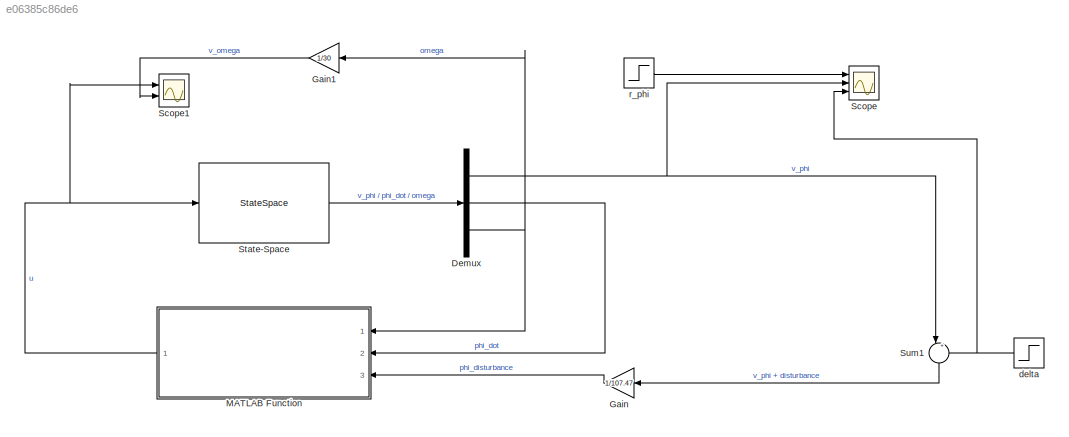
MODEL slx_e06385c86de6
KIND model
CONFIG AbsTol = auto
CONFIG EnableMultiTasking = off
CONFIG FixedStep = auto
CONFIG MaxStep = auto
CONFIG MinStep = auto
CONFIG RelTol = 1e-3
CONFIG SampleTimeConstraint = Unconstrained
CONFIG SolverName = VariableStepAuto
CONFIG StartTime = 0.0
CONFIG StopTime = 3
BLOCK [Demux] Demux
  Outputs = 3
  Ports = [1, 3]
BLOCK [Gain] Gain
  Gain = 1/107.47
  NameLocation = top
BLOCK [Gain] Gain1
  Gain = 1/30
  NameLocation = top
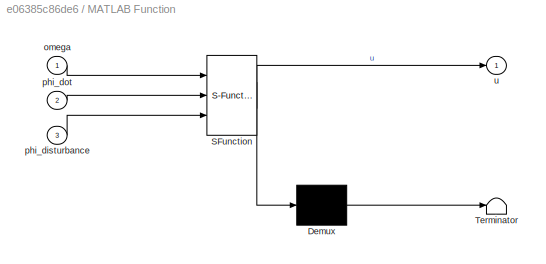
BLOCK [SubSystem] MATLAB Function
  ErrorFcn = Stateflow.Translate.translate
  NameLocation = top
  PermitHierarchicalResolution = ExplicitOnly
  Ports = [3, 1]
  RequestExecContextInheritance = off
  SFBlockType = MATLAB Function
  TreatAsAtomicUnit = on
BLOCK [Demux] MATLAB Function/ Demux 
  Outputs = 1
  Ports = [1, 1]
BLOCK [S-Function] MATLAB Function/ SFunction 
  EnableBusSupport = on
  FunctionName = sf_sfun
  PortCounts = [3 2]
  Ports = [3, 2]
  SFcnIsStateOwnerBlock = off
  SFunctionDeploymentMode = off
  Tag = Stateflow S-Function 2
BLOCK [Terminator] MATLAB Function/ Terminator 
BLOCK [Inport] MATLAB Function/omega
BLOCK [Inport] MATLAB Function/phi_disturbance
  Port = 3
BLOCK [Inport] MATLAB Function/phi_dot
  Port = 2
BLOCK [Outport] MATLAB Function/u
BLOCK [Scope] Scope
  Floating = off
  NumInputPorts = 3
  Ports = [3]
  ScopeSpecificationString = Simulink.scopes.TimeScopeBlockCfg('CurrentConfiguration', extmgr.ConfigurationSet(extmgr.Configuration('Core','General UI',true),extmgr.Configuration('Core','Source UI',true),extmgr.Configuration('Sources','WiredSimulink',true,'DataLoggingVariableName','ScopeData1'),extmgr.Configuration('Visuals','Time Domain',true,'SerializedDisplays',{struct('MinYLimReal','-0.21578','MaxYLimReal','0.2462','YLabe...<+1374ch>
BLOCK [Scope] Scope1
  Floating = off
  NumInputPorts = 2
  Ports = [2]
  ScopeSpecificationString = Simulink.scopes.TimeScopeBlockCfg('CurrentConfiguration', extmgr.ConfigurationSet(extmgr.Configuration('Core','General UI',true),extmgr.Configuration('Core','Source UI',true),extmgr.Configuration('Sources','WiredSimulink',true),extmgr.Configuration('Visuals','Time Domain',true,'SerializedDisplays',{struct('MinYLimReal','-5.20317','MaxYLimReal','4.17683','YLabelReal','','MinYLimMag','0.00000','MaxY...<+1331ch>
BLOCK [StateSpace] State-Space
  A = [0 1 0; 23.5031 0 0.0045; -23.5031 0 -19.9513]
  B = [0; 0.1393; -621.6819]
  C = [107.47 0 0; 0 1 0; 0 0 1]
  D = [0; 0; 0]
  InitialCondition = [0.001860984460780 0 0]
  Ports = [1, 1]
BLOCK [Sum] Sum1
  Inputs = |++
  NameLocation = left
  Ports = [2, 1]
BLOCK [Step] delta
  After = 0.2
  NameLocation = top
  SampleTime = 0
  Time = 1.5
BLOCK [Step] r_phi
  After = 0
  SampleTime = 0
  Time = 0
NET Demux:1 -> Scope:2, Sum1:1
LINE Demux:2 -> MATLAB Function:2
NET Demux:3 -> Gain1:1, MATLAB Function:1
LINE Gain1:1 -> Scope1:2
LINE Gain:1 -> MATLAB Function:3
NET MATLAB Function:1 -> Scope1:1, State-Space:1
LINE State-Space:1 -> Demux:1
LINE Sum1:1 -> Gain:1
NET delta:1 -> Scope:3, Sum1:2
LINE r_phi:1 -> Scope:1
note: NET lines group one-source signal fan-out (src -> all destinations, sorted); 1:1 wires keep LINE
CHART MATLAB Function states=1 transitions=1
  STATE_LABEL 'eML_blk_kernel()'
  STATE_LABEL 'SCRIPT:\nfunction u = state_feedback_control_law(omega, phi_dot, phi_disturbance)\n\nK = [2290 472 0.0771];\nx = [phi_disturbance; phi_dot; omega];\n\nu = -K*x;\n'
CHART  states=0 transitions=0
